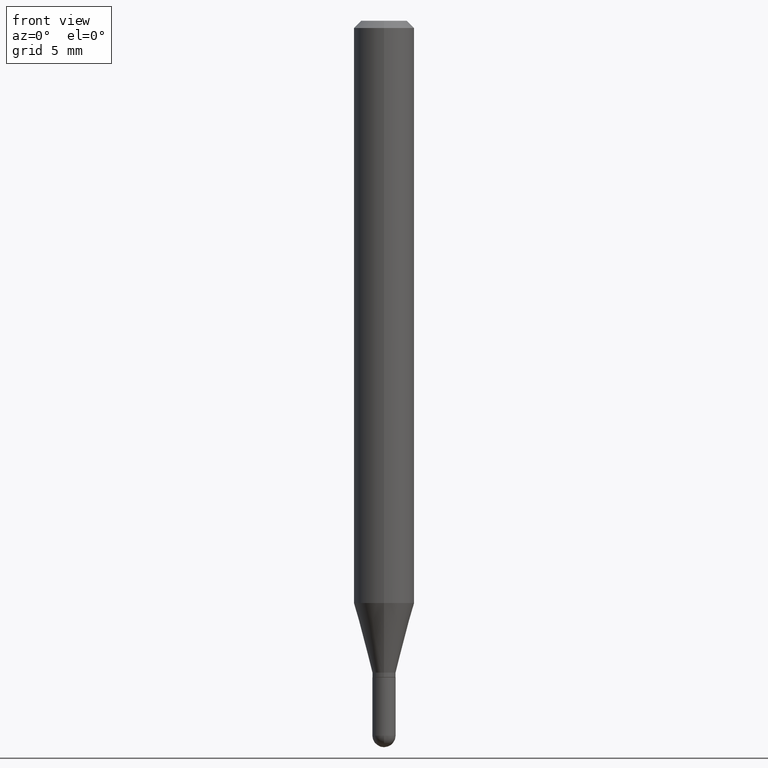
[diagram: clean part render]
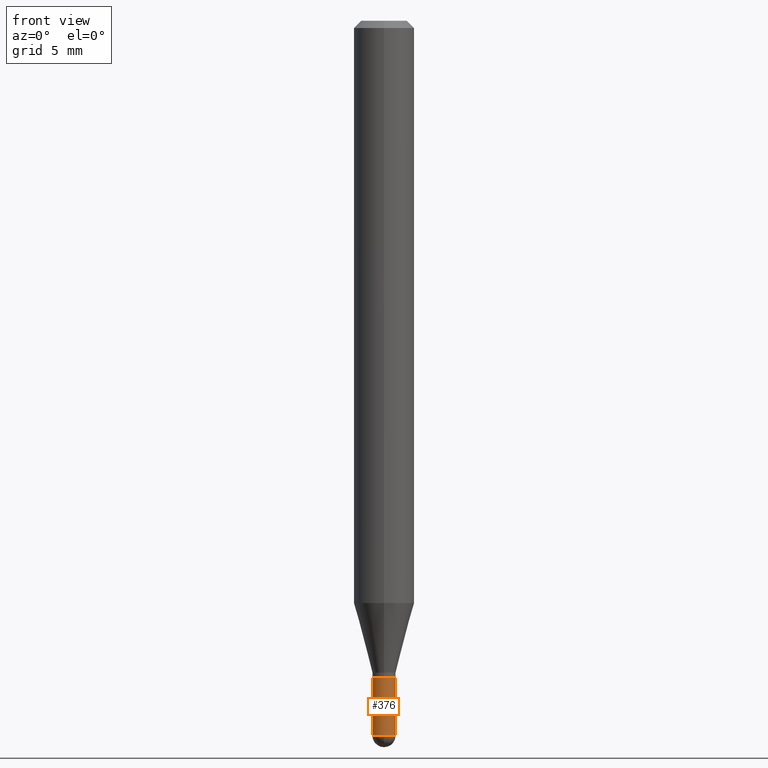
[diagram: same view with one face highlighted and labeled with its STEP entity id]
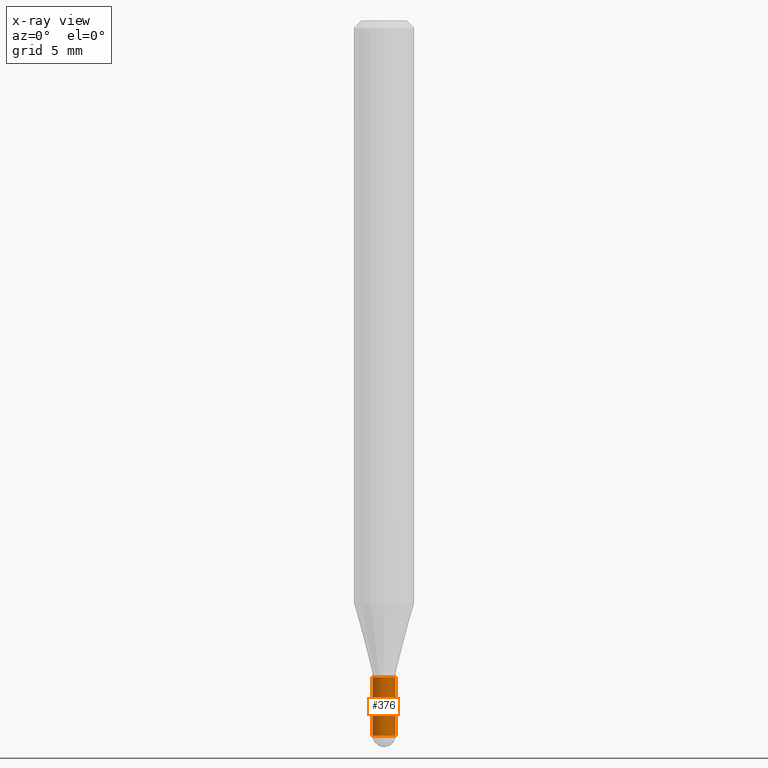
[diagram: x-ray of the same camera — body ghosted, the highlighted face saturated]
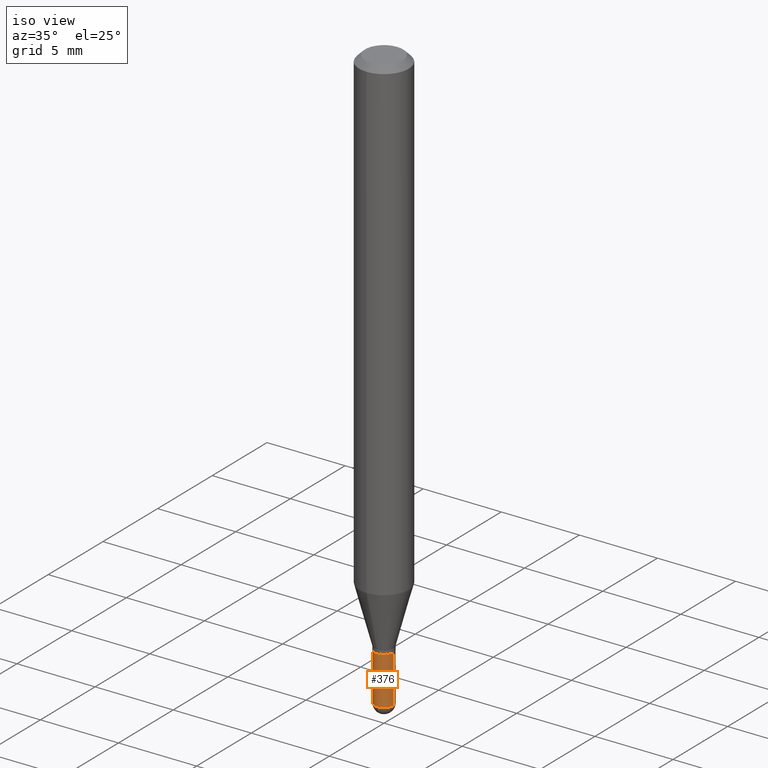
[diagram: same view with one face highlighted and labeled with its STEP entity id]
A machine part, front view. The second image highlights one B-rep face of the part: STEP entity #376.
The next image is the same camera in x-ray: the body ghosted, the highlighted face saturated — about 0% of this face is hidden behind the body in this view.
A second angle (iso view) of the same face is appended — the face is thin or edge-on in the first view.
In plain terms, the highlighted cylindrical surface (edge-blend (fillet) strip) has radius 0.6096 mm, axis along (-0, 0, 1).
Its self-contained STEP definition (entity closure, byte-faithful):
#27 = CARTESIAN_POINT ( 'NONE',  ( 3.316055701187045333E-29, -4.734448695471306216E-15, -1.356000000000000316 ) ) ;
#30 = CARTESIAN_POINT ( 'NONE',  ( 3.609511957929261635E-29, -5.153426456132482850E-15, -1.475999999999999979 ) ) ;
#40 = CARTESIAN_POINT ( 'NONE',  ( 0.000000000000000000, 0.000000000000000000, 0.000000000000000000 ) ) ;
#46 = CARTESIAN_POINT ( 'NONE',  ( -0.02400000000000000397, -4.773407319219470337E-15, -1.475999999999999979 ) ) ;
#51 = CIRCLE ( 'NONE', #365, 0.02400000000000000050 ) ;
#66 = DIRECTION ( 'NONE',  ( 1.000000000000000000, -6.982962677686250144E-15, 0.000000000000000000 ) ) ;
#67 = VERTEX_POINT ( 'NONE', #81 ) ;
#73 = ORIENTED_EDGE ( 'NONE', *, *, #421, .F. ) ;
#81 = CARTESIAN_POINT ( 'NONE',  ( 0.02400000000000000397, -5.111528680066364398E-15, -1.475999999999999979 ) ) ;
#104 = EDGE_LOOP ( 'NONE', ( #273, #441, #425, #113, #73 ) ) ;
#112 = CARTESIAN_POINT ( 'NONE',  ( 0.02400000000000000050, -4.902039799735776870E-15, -1.356000000000000316 ) ) ;
#113 = ORIENTED_EDGE ( 'NONE', *, *, #288, .T. ) ;
#114 = DIRECTION ( 'NONE',  ( 1.000000000000000000, -6.982962677686266711E-15, 4.876176775795935232E-29 ) ) ;
#124 = VERTEX_POINT ( 'NONE', #46 ) ;
#127 = DIRECTION ( 'NONE',  ( -2.445468806185136877E-29, 3.491481338843145188E-15, 1.000000000000000000 ) ) ;
#130 = CARTESIAN_POINT ( 'NONE',  ( 0.02400000000000000397, -1.675911042644704316E-16, 1.170282426191024667E-30 ) ) ;
#142 = DIRECTION ( 'NONE',  ( -2.445468806185136877E-29, 3.491481338843145188E-15, 1.000000000000000000 ) ) ;
#144 = LINE ( 'NONE', #351, #209 ) ;
#182 = LINE ( 'NONE', #130, #241 ) ;
#199 = CARTESIAN_POINT ( 'NONE',  ( -1.705302565823881057E-16, -0.02400000000000517691, -1.475999999999999979 ) ) ;
#204 = AXIS2_PLACEMENT_3D ( 'NONE', #30, #505, #66 ) ;
#209 = VECTOR ( 'NONE', #142, 39.37007874015748143 ) ;
#234 = CARTESIAN_POINT ( 'NONE',  ( -0.02400000000000000050, -4.773407319219470337E-15, -1.356000000000000316 ) ) ;
#238 = DIRECTION ( 'NONE',  ( -2.445468806185136597E-29, 3.491481338843145583E-15, 1.000000000000000000 ) ) ;
#241 = VECTOR ( 'NONE', #127, 39.37007874015748143 ) ;
#273 = ORIENTED_EDGE ( 'NONE', *, *, #385, .F. ) ;
#276 = DIRECTION ( 'NONE',  ( 1.000000000000000000, -6.982962677686251722E-15, 0.000000000000000000 ) ) ;
#282 = AXIS2_PLACEMENT_3D ( 'NONE', #40, #473, #114 ) ;
#288 = EDGE_CURVE ( 'NONE', #67, #312, #182, .T. ) ;
#312 = VERTEX_POINT ( 'NONE', #112 ) ;
#341 = CIRCLE ( 'NONE', #410, 0.02400000000000000397 ) ;
#351 = CARTESIAN_POINT ( 'NONE',  ( -0.02400000000000000397, 1.705302565824240728E-16, -1.180544421661177751E-30 ) ) ;
#355 = FACE_OUTER_BOUND ( 'NONE', #104, .T. ) ;
#357 = DIRECTION ( 'NONE',  ( -2.445468806185136597E-29, 3.491481338843145583E-15, 1.000000000000000000 ) ) ;
#359 = DIRECTION ( 'NONE',  ( 1.000000000000000000, -6.982962677686250144E-15, 0.000000000000000000 ) ) ;
#363 = VERTEX_POINT ( 'NONE', #234 ) ;
#365 = AXIS2_PLACEMENT_3D ( 'NONE', #27, #357, #276 ) ;
#376 = ADVANCED_FACE ( 'NONE', ( #355 ), #471, .T. ) ;
#385 = EDGE_CURVE ( 'NONE', #124, #363, #144, .T. ) ;
#398 = EDGE_CURVE ( 'NONE', #472, #67, #453, .T. ) ;
#410 = AXIS2_PLACEMENT_3D ( 'NONE', #511, #238, #359 ) ;
#421 = EDGE_CURVE ( 'NONE', #363, #312, #51, .T. ) ;
#425 = ORIENTED_EDGE ( 'NONE', *, *, #398, .T. ) ;
#441 = ORIENTED_EDGE ( 'NONE', *, *, #456, .T. ) ;
#453 = CIRCLE ( 'NONE', #204, 0.02400000000000000397 ) ;
#456 = EDGE_CURVE ( 'NONE', #124, #472, #341, .T. ) ;
#471 = CYLINDRICAL_SURFACE ( 'NONE', #282, 0.02400000000000000397 ) ;
#472 = VERTEX_POINT ( 'NONE', #199 ) ;
#473 = DIRECTION ( 'NONE',  ( -2.445468806185136597E-29, 3.491481338843145583E-15, 1.000000000000000000 ) ) ;
#505 = DIRECTION ( 'NONE',  ( -2.445468806185136597E-29, 3.491481338843145583E-15, 1.000000000000000000 ) ) ;
#511 = CARTESIAN_POINT ( 'NONE',  ( 3.609511957929261635E-29, -5.153426456132482850E-15, -1.475999999999999979 ) ) ;